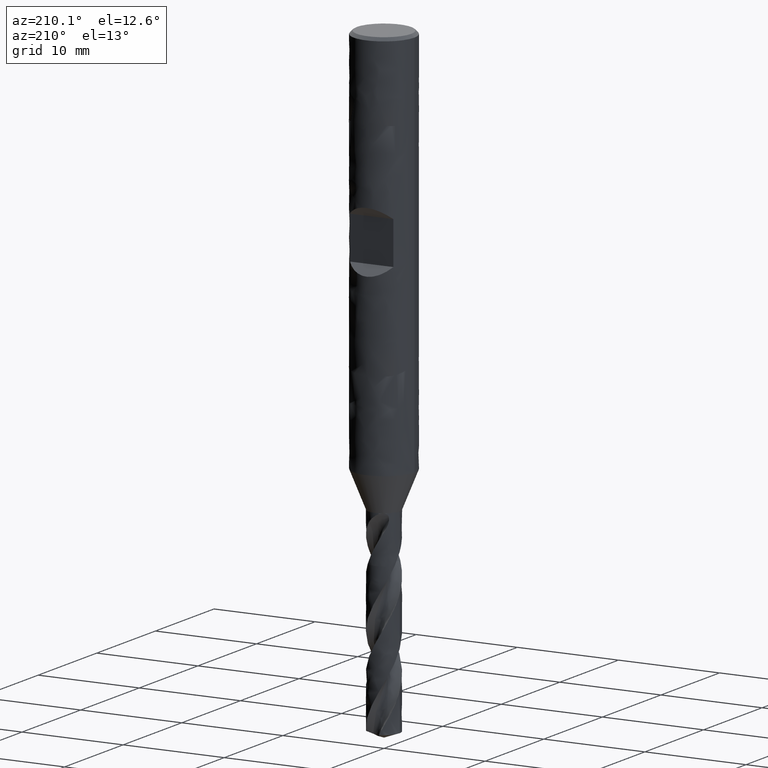
[diagram: clean part render]
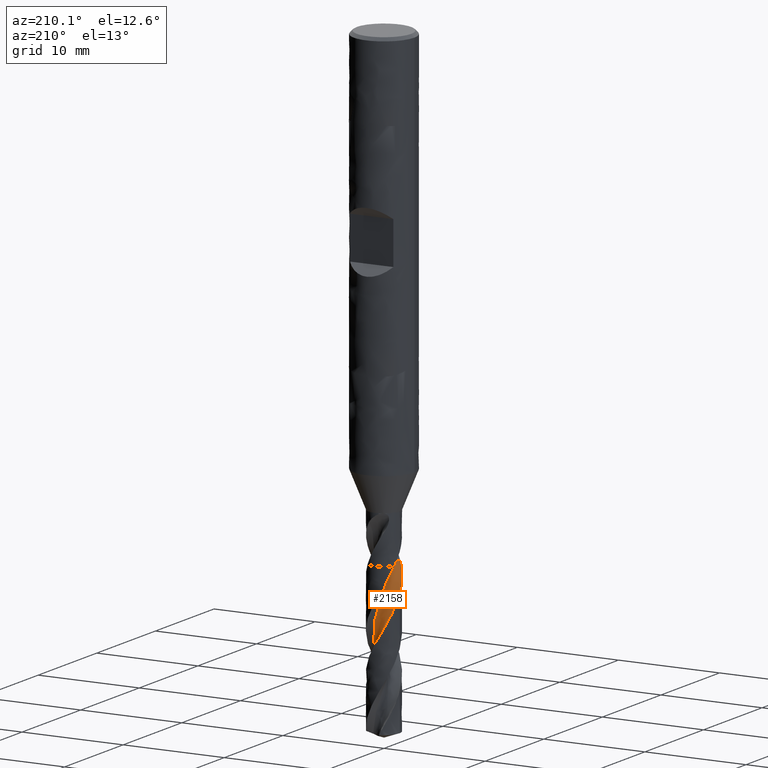
[diagram: same view with one face highlighted and labeled with its STEP entity id]
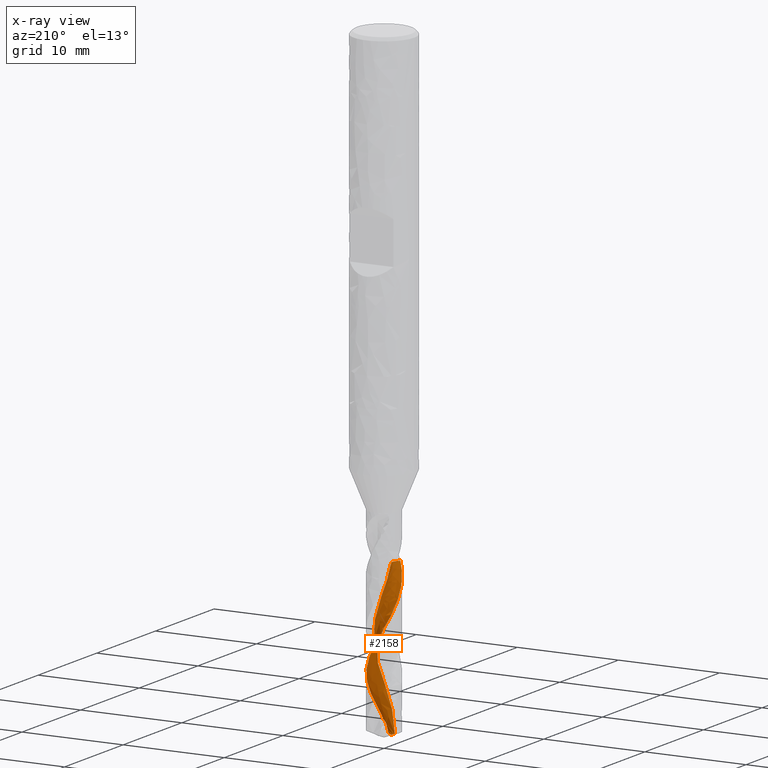
[diagram: x-ray of the same camera — body ghosted, the highlighted face saturated]
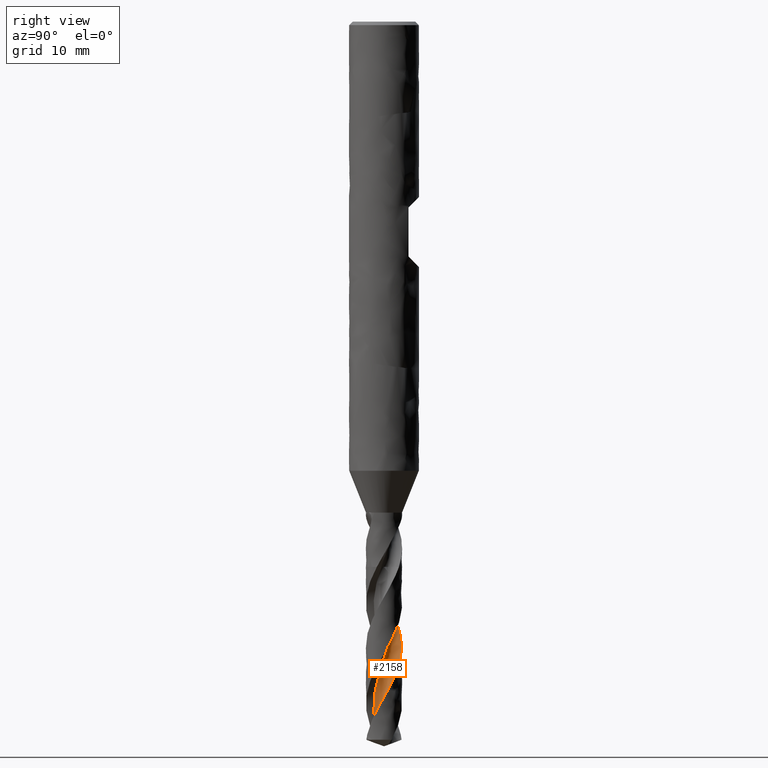
[diagram: same view with one face highlighted and labeled with its STEP entity id]
A machine part, auxiliary view. The second image highlights one B-rep face of the part: STEP entity #2158.
The next image is the same camera in x-ray: the body ghosted, the highlighted face saturated — about 0% of this face is hidden behind the body in this view.
A second angle (right view) of the same face is appended — the face is thin or edge-on in the first view.
In plain terms, the highlighted face is a freeform B-spline surface patch.
Its self-contained STEP definition (entity closure, byte-faithful):
#1658 = VERTEX_POINT('', #1659);
#1659 = CARTESIAN_POINT('', (-0.884158068900923, -1.27309249828808, -46.65));
#1693 = VERTEX_POINT('', #1694);
#1694 = CARTESIAN_POINT('', (-0.895284943980389, 0.244365567497763, -46.65));
#1700 = EDGE_CURVE('', #1693, #1658, #1701, .T.);
#1701 = CIRCLE('', #1702, 0.930090319672978);
#1702 = AXIS2_PLACEMENT_3D('', #1703, #1704, #1705);
#1703 = CARTESIAN_POINT('', (-1.42763617465061, -0.518307785676644, -46.65));
#1704 = DIRECTION('', (2.99971177112166E-14, 7.01123163726737E-15, -1.));
#1705 = DIRECTION('', (0.572364934522202, 0.819999013249038, 2.29185013388549E-14));
#2102 = EDGE_CURVE('', #1658, #2103, #2105, .T.);
#2103 = VERTEX_POINT('', #2104);
#2104 = CARTESIAN_POINT('', (-1.19291626860228, -0.989672054826245, -47.3797636748293));
#2105 = B_SPLINE_CURVE_WITH_KNOTS('', 3, (#2106, #2107, #2108, #2109, #2110, #2111, #2112, #2113, #2114, #2115, #2116, #2117, #2118), .UNSPECIFIED., .F., .U., (4, 3, 3, 3, 4), (1.85836392341819, 2.02697741915636, 2.32261171812472, 2.61816168050034, 2.70048715971505), .UNSPECIFIED.);
#2106 = CARTESIAN_POINT('', (-0.884158068900923, -1.27309249828808, -46.65));
#2107 = CARTESIAN_POINT('', (-0.907207475976353, -1.2570847696458, -46.6986972598587));
#2108 = CARTESIAN_POINT('', (-0.929826184788996, -1.24044771661915, -46.747410955595));
#2109 = CARTESIAN_POINT('', (-0.951969028413255, -1.22321501337333, -46.7961107921002));
#2110 = CARTESIAN_POINT('', (-0.990792635167656, -1.19300047970801, -46.8814974449423));
#2111 = CARTESIAN_POINT('', (-1.02818592983138, -1.1609278477726, -46.9669089945676));
#2112 = CARTESIAN_POINT('', (-1.06395782697545, -1.12716180844529, -47.0522980859814));
#2113 = CARTESIAN_POINT('', (-1.09971951934988, -1.09340540166982, -47.1376628181613));
#2114 = CARTESIAN_POINT('', (-1.13388012549378, -1.05793828831981, -47.2230538235406));
#2115 = CARTESIAN_POINT('', (-1.16626619230614, -1.02094229449257, -47.3084234332222));
#2116 = CARTESIAN_POINT('', (-1.17528733529251, -1.01063705575604, -47.3322031487428));
#2117 = CARTESIAN_POINT('', (-1.18417185008953, -1.00021227272212, -47.3559835825667));
#2118 = CARTESIAN_POINT('', (-1.19291626860229, -0.989672054826238, -47.3797636748293));
#2158 = ADVANCED_FACE('', (#2159), #2384, .T.);
#2159 = FACE_OUTER_BOUND('', #2160, .T.);
#2160 = EDGE_LOOP('', (#2161, #2162, #2223, #2316, #2328, #2383));
#2161 = ORIENTED_EDGE('', *, *, #1700, .F.);
#2162 = ORIENTED_EDGE('', *, *, #2163, .F.);
#2163 = EDGE_CURVE('', #2164, #1693, #2166, .T.);
#2164 = VERTEX_POINT('', #2165);
#2165 = CARTESIAN_POINT('', (-0.820372088573614, -0.433109151067706, -61.6623513636984));
#2166 = B_SPLINE_CURVE_WITH_KNOTS('', 3, (#2167, #2168, #2169, #2170, #2171, #2172, #2173, #2174, #2175, #2176, #2177, #2178, #2179, #2180, #2181, #2182, #2183, #2184, #2185, #2186, #2187, #2188, #2189, #2190, #2191, #2192, #2193, #2194, #2195, #2196, #2197, #2198, #2199, #2200, #2201, #2202, #2203, #2204, #2205, #2206, #2207, #2208, #2209, #2210, #2211, #2212, #2213, #2214, #2215, #2216, #2217, #2218, #2219, #2220, #2221, #2222), .UNSPECIFIED., .F., .U., (4, 1, 1, 1, 1, 1, 1, 1, 1, 1, 1, 1, 1, 1, 1, 1, 1, 1, 1, 1, 1, 1, 1, 1, 1, 1, 1, 1, 1, 1, 1, 1, 1, 1, 1, 1, 1, 1, 1, 1, 1, 1, 1, 1, 1, 1, 1, 1, 1, 1, 1, 1, 1, 4), (0.387648636301547, 0.573428571428571, 0.860142857142857, 1.14685714285714, 1.43357142857143, 1.72028571428571, 2.007, 2.29371428571429, 2.58042857142857, 2.86714285714286, 3.15385714285714, 3.44057142857143, 3.72728571428571, 4.014, 4.30071428571429, 4.58742857142857, 4.87414285714286, 5.16085714285714, 5.44757142857143, 5.73428571428571, 6.021, 6.30771428571429, 6.59442857142857, 6.88114285714286, 7.16785714285714, 7.45457142857143, 7.74128571428571, 8.028, 8.31471428571428, 8.60142857142857, 8.88814285714286, 9.17485714285714, 9.46157142857143, 9.74828571428571, 10.035, 10.3217142857143, 10.6084285714286, 10.8951428571429, 11.1818571428571, 11.4685714285714, 11.7552857142857, 12.042, 12.3287142857143, 12.6154285714286, 12.9021428571429, 13.1888571428571, 13.4755714285714, 13.7622857142857, 14.049, 14.3357142857143, 14.6224285714286, 14.9091428571429, 15.1958571428571, 15.4), .UNSPECIFIED.);
#2167 = CARTESIAN_POINT('', (-0.820372088573614, -0.433109151067706, -61.6623513636984));
#2168 = CARTESIAN_POINT('', (-0.810011782758436, -0.451573680569038, -61.6004247186561));
#2169 = CARTESIAN_POINT('', (-0.782094350491548, -0.497600412978577, -61.4429266450423));
#2170 = CARTESIAN_POINT('', (-0.731094299094061, -0.567313057749458, -61.1898571428571));
#2171 = CARTESIAN_POINT('', (-0.665544796063354, -0.639637253232335, -60.9031428571429));
#2172 = CARTESIAN_POINT('', (-0.592974397431088, -0.70455431017064, -60.6164285714286));
#2173 = CARTESIAN_POINT('', (-0.514203894214459, -0.761397422520778, -60.3297142857143));
#2174 = CARTESIAN_POINT('', (-0.43011538971722, -0.80958867147406, -60.043));
#2175 = CARTESIAN_POINT('', (-0.341643388642359, -0.848644952949179, -59.7562857142857));
#2176 = CARTESIAN_POINT('', (-0.249764635939904, -0.878182425777729, -59.4695714285714));
#2177 = CARTESIAN_POINT('', (-0.155487787190808, -0.897920052709875, -59.1828571428571));
#2178 = CARTESIAN_POINT('', (-0.0598427534486084, -0.907682042023052, -58.8961428571429));
#2179 = CARTESIAN_POINT('', (0.0361301019557038, -0.90739921555357, -58.6094285714286));
#2180 = CARTESIAN_POINT('', (0.13139082544888, -0.897109283906459, -58.3227142857143));
#2181 = CARTESIAN_POINT('', (0.224910681171876, -0.876956035038409, -58.036));
#2182 = CARTESIAN_POINT('', (0.315682799505723, -0.84718744884376, -57.7492857142857));
#2183 = CARTESIAN_POINT('', (0.402732561245687, -0.808152761671318, -57.4625714285714));
#2184 = CARTESIAN_POINT('', (0.485127616059945, -0.760298514352121, -57.1758571428571));
#2185 = CARTESIAN_POINT('', (0.561987437760393, -0.704163626959768, -56.8891428571429));
#2186 = CARTESIAN_POINT('', (0.632492323834714, -0.640373552613814, -56.6024285714286));
#2187 = CARTESIAN_POINT('', (0.695891752393228, -0.569633571219592, -56.3157142857143));
#2188 = CARTESIAN_POINT('', (0.751512016168747, -0.4927212920103, -56.029));
#2189 = CARTESIAN_POINT('', (0.798763060396724, -0.410478441062172, -55.7422857142857));
#2190 = CARTESIAN_POINT('', (0.837144459233867, -0.323802016528699, -55.4555714285714));
#2191 = CARTESIAN_POINT('', (0.866250473773143, -0.233634900132395, -55.1688571428571));
#2192 = CARTESIAN_POINT('', (0.88577414360664, -0.140956018415466, -54.8821428571429));
#2193 = CARTESIAN_POINT('', (0.895510373195797, -0.0467701513441261, -54.5954285714286));
#2194 = CARTESIAN_POINT('', (0.895357983948703, 0.0479025109473123, -54.3087142857143));
#2195 = CARTESIAN_POINT('', (0.885320712792298, 0.142036960222365, -54.022));
#2196 = CARTESIAN_POINT('', (0.86550714807699, 0.234614006648883, -53.7352857142857));
#2197 = CARTESIAN_POINT('', (0.836129603775138, 0.324630855012337, -53.4485714285714));
#2198 = CARTESIAN_POINT('', (0.797501943045456, 0.411111516494903, -53.1618571428571));
#2199 = CARTESIAN_POINT('', (0.750036372244908, 0.493116953423967, -52.8751428571429));
#2200 = CARTESIAN_POINT('', (0.694239236291465, 0.569754856876888, -52.5884285714286));
#2201 = CARTESIAN_POINT('', (0.630705855829812, 0.640188960430223, -52.3017142857143));
#2202 = CARTESIAN_POINT('', (0.560114455844495, 0.703647797632914, -52.015));
#2203 = CARTESIAN_POINT('', (0.483219244120418, 0.759432815928971, -51.7282857142857));
#2204 = CARTESIAN_POINT('', (0.400842706191697, 0.806925765713489, -51.4415714285714));
#2205 = CARTESIAN_POINT('', (0.313867191073377, 0.845595289927411, -51.1548571428571));
#2206 = CARTESIAN_POINT('', (0.223225869066552, 0.875002647025631, -50.8681428571429));
#2207 = CARTESIAN_POINT('', (0.129893149203786, 0.894806508228383, -50.5814285714286));
#2208 = CARTESIAN_POINT('', (0.0348746493939352, 0.904766778619284, -50.2947142857143));
#2209 = CARTESIAN_POINT('', (-0.0608031829991585, 0.904747400815052, -50.008));
#2210 = CARTESIAN_POINT('', (-0.156103698671346, 0.894718109514256, -49.7212857142857));
#2211 = CARTESIAN_POINT('', (-0.249990817476171, 0.874755115191866, -49.4345714285714));
#2212 = CARTESIAN_POINT('', (-0.341439837320137, 0.845040705315557, -49.1478571428571));
#2213 = CARTESIAN_POINT('', (-0.429448171742929, 0.805861762160765, -48.8611428571429));
#2214 = CARTESIAN_POINT('', (-0.513045916026307, 0.757607205523324, -48.5744285714286));
#2215 = CARTESIAN_POINT('', (-0.591306109495509, 0.700764383669883, -48.2877142857143));
#2216 = CARTESIAN_POINT('', (-0.663354687752807, 0.635914429047601, -48.001));
#2217 = CARTESIAN_POINT('', (-0.72837965876616, 0.563726669455616, -47.7142857142857));
#2218 = CARTESIAN_POINT('', (-0.785640768178872, 0.484951956237347, -47.4275714285714));
#2219 = CARTESIAN_POINT('', (-0.834474477344996, 0.400415672462618, -47.1408571428571));
#2220 = CARTESIAN_POINT('', (-0.870488737307082, 0.319590776284642, -46.8816666666667));
#2221 = CARTESIAN_POINT('', (-0.888580634443863, 0.266653735050546, -46.7180476190476));
#2222 = CARTESIAN_POINT('', (-0.895284943980389, 0.244365567497762, -46.65));
#2223 = ORIENTED_EDGE('', *, *, #2224, .T.);
#2224 = EDGE_CURVE('', #2164, #2225, #2227, .T.);
#2225 = VERTEX_POINT('', #2226);
#2226 = CARTESIAN_POINT('', (0.349973993716162, -1.50997291489694, -61.4358461368874));
#2227 = B_SPLINE_CURVE_WITH_KNOTS('', 3, (#2228, #2229, #2230, #2231, #2232, #2233, #2234, #2235, #2236, #2237, #2238, #2239, #2240, #2241, #2242, #2243, #2244, #2245, #2246, #2247, #2248, #2249, #2250, #2251, #2252, #2253, #2254, #2255, #2256, #2257, #2258, #2259, #2260, #2261, #2262, #2263, #2264, #2265, #2266, #2267, #2268, #2269, #2270, #2271, #2272, #2273, #2274, #2275, #2276, #2277, #2278, #2279, #2280, #2281, #2282, #2283, #2284, #2285, #2286, #2287, #2288, #2289, #2290, #2291, #2292, #2293, #2294, #2295, #2296, #2297, #2298, #2299, #2300, #2301, #2302, #2303, #2304, #2305, #2306, #2307, #2308, #2309, #2310, #2311, #2312, #2313, #2314, #2315), .UNSPECIFIED., .F., .U., (4, 3, 3, 3, 3, 3, 3, 3, 3, 3, 3, 3, 3, 3, 3, 3, 3, 3, 3, 3, 3, 3, 3, 3, 3, 3, 3, 3, 3, 4), (0., 0.0877554509108771, 0.17531319917069, 0.233555974355757, 0.29169291379722, 0.349721431444751, 0.40765987257716, 0.465552574786508, 0.523463798979454, 0.581457576554027, 0.639572838032563, 0.697810855663514, 0.756142381871795, 0.814525422643039, 0.872920496888131, 0.898872035299704, 0.916192479740151, 0.942211385251336, 0.959551025968964, 1.04830598978806, 1.13663361673215, 1.22463604895147, 1.31238878422237, 1.39994512007703, 1.4873418556988, 1.57460397778113, 1.66174804870489, 1.74878452707419, 1.83571933667465, 1.84920120702102), .UNSPECIFIED.);
#2228 = CARTESIAN_POINT('', (-0.820372088573615, -0.433109151067704, -61.6623513636985));
#2229 = CARTESIAN_POINT('', (-0.793699927394839, -0.426125006143608, -61.6721230745925));
#2230 = CARTESIAN_POINT('', (-0.766502605424877, -0.420750540973126, -61.6817703801935));
#2231 = CARTESIAN_POINT('', (-0.739030367017324, -0.417100883933472, -61.6911311983434));
#2232 = CARTESIAN_POINT('', (-0.711620020313448, -0.413459449139441, -61.7004709276772));
#2233 = CARTESIAN_POINT('', (-0.683836614389277, -0.411523168755243, -61.7095598917659));
#2234 = CARTESIAN_POINT('', (-0.655955425508031, -0.411366816655653, -61.7181873223454));
#2235 = CARTESIAN_POINT('', (-0.637409062128697, -0.411262812379993, -61.7239262262077));
#2236 = CARTESIAN_POINT('', (-0.618779845997671, -0.411944616535479, -61.7294723855877));
#2237 = CARTESIAN_POINT('', (-0.600155118501013, -0.413420120229665, -61.7347502491282));
#2238 = CARTESIAN_POINT('', (-0.581564234891049, -0.414892942715235, -61.7400185220094));
#2239 = CARTESIAN_POINT('', (-0.562943445611981, -0.41715962437609, -61.7450289860794));
#2240 = CARTESIAN_POINT('', (-0.544384554839206, -0.420212554105409, -61.749697181874));
#2241 = CARTESIAN_POINT('', (-0.525860275249102, -0.423259790309731, -61.7543566717724));
#2242 = CARTESIAN_POINT('', (-0.507361574850425, -0.427096626594511, -61.758683724317));
#2243 = CARTESIAN_POINT('', (-0.488984042968694, -0.431695631679959, -61.7625902449031));
#2244 = CARTESIAN_POINT('', (-0.470635038164606, -0.436287497821179, -61.766490701475));
#2245 = CARTESIAN_POINT('', (-0.452369540802034, -0.441648765982463, -61.7699790166366));
#2246 = CARTESIAN_POINT('', (-0.434284871193426, -0.447728421982924, -61.7729735585868));
#2247 = CARTESIAN_POINT('', (-0.416214478346422, -0.453803278459743, -61.7759657365258));
#2248 = CARTESIAN_POINT('', (-0.398287108442289, -0.460608016364282, -61.7784701634279));
#2249 = CARTESIAN_POINT('', (-0.380597249590218, -0.46806729905552, -61.7804256948656));
#2250 = CARTESIAN_POINT('', (-0.362901731108124, -0.475528968242921, -61.782381851949));
#2251 = CARTESIAN_POINT('', (-0.345407554667083, -0.483660529338145, -61.7837921095611));
#2252 = CARTESIAN_POINT('', (-0.328199256266829, -0.49236732411786, -61.7846291416866));
#2253 = CARTESIAN_POINT('', (-0.310966427160399, -0.501086530573589, -61.7854673670148));
#2254 = CARTESIAN_POINT('', (-0.293986846648725, -0.51039877576932, -61.7857324119162));
#2255 = CARTESIAN_POINT('', (-0.277327767851957, -0.520201079593602, -61.7854365820505));
#2256 = CARTESIAN_POINT('', (-0.260633792036692, -0.53002391703694, -61.7851401324879));
#2257 = CARTESIAN_POINT('', (-0.244232593736275, -0.540355088700408, -61.7842807352488));
#2258 = CARTESIAN_POINT('', (-0.22817033617573, -0.551096409976277, -61.7829049643343));
#2259 = CARTESIAN_POINT('', (-0.212074150505992, -0.561860420013036, -61.7815262873957));
#2260 = CARTESIAN_POINT('', (-0.19629452356536, -0.573051516810266, -61.7796281377096));
#2261 = CARTESIAN_POINT('', (-0.180858097823795, -0.584586054543286, -61.7772780196493));
#2262 = CARTESIAN_POINT('', (-0.165396886928668, -0.596139112450197, -61.7749241281741));
#2263 = CARTESIAN_POINT('', (-0.150261424022484, -0.608050152098461, -61.7721149759571));
#2264 = CARTESIAN_POINT('', (-0.135464192863315, -0.620253719551041, -61.768924696052));
#2265 = CARTESIAN_POINT('', (-0.120653893763946, -0.632468064390821, -61.7657315987017));
#2266 = CARTESIAN_POINT('', (-0.106168400160939, -0.644986853530488, -61.7621543044872));
#2267 = CARTESIAN_POINT('', (-0.0920121451978697, -0.657761515745918, -61.7582633533607));
#2268 = CARTESIAN_POINT('', (-0.0778529724538547, -0.670538810978774, -61.7543716002607));
#2269 = CARTESIAN_POINT('', (-0.064012627545234, -0.683581598383992, -61.7501634544654));
#2270 = CARTESIAN_POINT('', (-0.0504922970413411, -0.69685458164127, -61.7457007459861));
#2271 = CARTESIAN_POINT('', (-0.0444836844837773, -0.702753269831848, -61.7437174596897));
#2272 = CARTESIAN_POINT('', (-0.0385370697538112, -0.708698708921797, -61.7416833933325));
#2273 = CARTESIAN_POINT('', (-0.0326525202712865, -0.71468843418078, -61.7396033355258));
#2274 = CARTESIAN_POINT('', (-0.0287250840340699, -0.718686066302485, -61.7382150738704));
#2275 = CARTESIAN_POINT('', (-0.0248250595268381, -0.722703670184654, -61.7368062354444));
#2276 = CARTESIAN_POINT('', (-0.0209524724655171, -0.726740590059751, -61.7353781472902));
#2277 = CARTESIAN_POINT('', (-0.0151350422500978, -0.732804882298181, -61.733232862227));
#2278 = CARTESIAN_POINT('', (-0.00937903949458812, -0.738913262388902, -61.7310439737631));
#2279 = CARTESIAN_POINT('', (-0.0036845882627459, -0.745063729276338, -61.7288156638876));
#2280 = CARTESIAN_POINT('', (0.000110334563725526, -0.749162552189084, -61.7273306631971));
#2281 = CARTESIAN_POINT('', (0.00387812181392714, -0.753280288783058, -61.7258280685892));
#2282 = CARTESIAN_POINT('', (0.0076187222592366, -0.757416402935507, -61.7243090282322));
#2283 = CARTESIAN_POINT('', (0.0267654198518575, -0.778587583349815, -61.7165336438332));
#2284 = CARTESIAN_POINT('', (0.0452118973812375, -0.800251703457381, -61.7083258123014));
#2285 = CARTESIAN_POINT('', (0.0629452052878389, -0.822350158600561, -61.6998134928544));
#2286 = CARTESIAN_POINT('', (0.0805931309683861, -0.844342214232582, -61.6913421584729));
#2287 = CARTESIAN_POINT('', (0.0975507912600012, -0.866785079842493, -61.6825607900071));
#2288 = CARTESIAN_POINT('', (0.113794280871358, -0.889633098040288, -61.6735618785379));
#2289 = CARTESIAN_POINT('', (0.129977967029185, -0.912396996973859, -61.664596098249));
#2290 = CARTESIAN_POINT('', (0.145466164599411, -0.93558245149628, -61.655406292539));
#2291 = CARTESIAN_POINT('', (0.160224786431197, -0.959148202510205, -61.6460612152638));
#2292 = CARTESIAN_POINT('', (0.174941532342722, -0.982647088370894, -61.6367426535886));
#2293 = CARTESIAN_POINT('', (0.188944747251803, -1.00654351402494, -61.6272616816384));
#2294 = CARTESIAN_POINT('', (0.202191470873862, -1.0307957463957, -61.6176716150625));
#2295 = CARTESIAN_POINT('', (0.215408547000851, -1.05499369983981, -61.6081030120168));
#2296 = CARTESIAN_POINT('', (0.227883408851619, -1.07956614540576, -61.5984175633191));
#2297 = CARTESIAN_POINT('', (0.239565391487561, -1.10446771273977, -61.5886588009754));
#2298 = CARTESIAN_POINT('', (0.25122607986614, -1.12932388877333, -61.5789178271872));
#2299 = CARTESIAN_POINT('', (0.262106851465853, -1.1545297951836, -61.5690951175483));
#2300 = CARTESIAN_POINT('', (0.272150301961949, -1.18003396498494, -61.5592282976101));
#2301 = CARTESIAN_POINT('', (0.282178282950978, -1.2054988517794, -61.5493766751223));
#2302 = CARTESIAN_POINT('', (0.291380779016053, -1.23128498763668, -61.5394717424641));
#2303 = CARTESIAN_POINT('', (0.299694536223232, -1.25733254572931, -61.5295479585929));
#2304 = CARTESIAN_POINT('', (0.307997046297669, -1.28334486580186, -61.519637599953));
#2305 = CARTESIAN_POINT('', (0.315421520612394, -1.3096444415316, -61.5096982802601));
#2306 = CARTESIAN_POINT('', (0.321899858077794, -1.33616076315373, -61.4997633163055));
#2307 = CARTESIAN_POINT('', (0.328370197054379, -1.36264434636064, -61.4898406185687));
#2308 = CARTESIAN_POINT('', (0.333903791026515, -1.38937386161272, -61.4799111081122));
#2309 = CARTESIAN_POINT('', (0.338429027399919, -1.41626561896252, -61.4700085317439));
#2310 = CARTESIAN_POINT('', (0.342948977768886, -1.44312596359993, -61.460117522741));
#2311 = CARTESIAN_POINT('', (0.346468301926541, -1.47018162615237, -61.4502410625244));
#2312 = CARTESIAN_POINT('', (0.348913808832971, -1.4973330577194, -61.4404145990555));
#2313 = CARTESIAN_POINT('', (0.349293058608696, -1.50154370799617, -61.4388907088318));
#2314 = CARTESIAN_POINT('', (0.349646544439711, -1.50575713056087, -61.4373678421685));
#2315 = CARTESIAN_POINT('', (0.349973993716168, -1.50997291489693, -61.4358461368874));
#2316 = ORIENTED_EDGE('', *, *, #2317, .F.);
#2317 = EDGE_CURVE('', #2318, #2225, #2320, .T.);
#2318 = VERTEX_POINT('', #2319);
#2319 = CARTESIAN_POINT('', (0.598909748504045, -1.42961782065936, -60.9732158103966));
#2320 = B_SPLINE_CURVE_WITH_KNOTS('', 3, (#2321, #2322, #2323, #2324, #2325, #2326, #2327), .UNSPECIFIED., .F., .U., (4, 3, 4), (0., 0.4424696598773, 0.531526986611299), .UNSPECIFIED.);
#2321 = CARTESIAN_POINT('', (0.598909748504046, -1.42961782065936, -60.9732158103966));
#2322 = CARTESIAN_POINT('', (0.531883535008349, -1.45769711016442, -61.1015602955224));
#2323 = CARTESIAN_POINT('', (0.46284703800062, -1.48106413517583, -61.2299871942302));
#2324 = CARTESIAN_POINT('', (0.392563482824736, -1.49946454174565, -61.3583418340637));
#2325 = CARTESIAN_POINT('', (0.378417280034105, -1.50316805221998, -61.3841761954539));
#2326 = CARTESIAN_POINT('', (0.36421867644714, -1.5066713533554, -61.410011393286));
#2327 = CARTESIAN_POINT('', (0.349973993716162, -1.50997291489694, -61.4358461368874));
#2328 = ORIENTED_EDGE('', *, *, #2329, .T.);
#2329 = EDGE_CURVE('', #2318, #2103, #2330, .T.);
#2330 = B_SPLINE_CURVE_WITH_KNOTS('', 3, (#2331, #2332, #2333, #2334, #2335, #2336, #2337, #2338, #2339, #2340, #2341, #2342, #2343, #2344, #2345, #2346, #2347, #2348, #2349, #2350, #2351, #2352, #2353, #2354, #2355, #2356, #2357, #2358, #2359, #2360, #2361, #2362, #2363, #2364, #2365, #2366, #2367, #2368, #2369, #2370, #2371, #2372, #2373, #2374, #2375, #2376, #2377, #2378, #2379, #2380, #2381, #2382), .UNSPECIFIED., .F., .U., (4, 1, 1, 1, 1, 1, 1, 1, 1, 1, 1, 1, 1, 1, 1, 1, 1, 1, 1, 1, 1, 1, 1, 1, 1, 1, 1, 1, 1, 1, 1, 1, 1, 1, 1, 1, 1, 1, 1, 1, 1, 1, 1, 1, 1, 1, 1, 1, 1, 4), (1.07678418960344, 1.14685714285714, 1.43357142857143, 1.72028571428571, 2.007, 2.29371428571429, 2.58042857142857, 2.86714285714286, 3.15385714285714, 3.44057142857143, 3.72728571428571, 4.014, 4.30071428571429, 4.58742857142857, 4.87414285714286, 5.16085714285714, 5.44757142857143, 5.73428571428571, 6.021, 6.30771428571429, 6.59442857142857, 6.88114285714286, 7.16785714285714, 7.45457142857143, 7.74128571428571, 8.028, 8.31471428571428, 8.60142857142857, 8.88814285714286, 9.17485714285714, 9.46157142857143, 9.74828571428571, 10.035, 10.3217142857143, 10.6084285714286, 10.8951428571429, 11.1818571428571, 11.4685714285714, 11.7552857142857, 12.042, 12.3287142857143, 12.6154285714286, 12.9021428571429, 13.1888571428571, 13.4755714285714, 13.7622857142857, 14.049, 14.3357142857143, 14.6224285714286, 14.6702363251707), .UNSPECIFIED.);
#2331 = CARTESIAN_POINT('', (0.598909748504054, -1.42961782065935, -60.9732158103966));
#2332 = CARTESIAN_POINT('', (0.611092187966905, -1.42417660364138, -60.949858159312));
#2333 = CARTESIAN_POINT('', (0.672747623535301, -1.39568665747616, -60.830929079656));
#2334 = CARTESIAN_POINT('', (0.780337622071052, -1.33717840956205, -60.6164285714286));
#2335 = CARTESIAN_POINT('', (0.91487003347748, -1.2445915369115, -60.3297142857143));
#2336 = CARTESIAN_POINT('', (1.03870987956337, -1.13869340663763, -60.043));
#2337 = CARTESIAN_POINT('', (1.15056395070565, -1.02069055884016, -59.7562857142857));
#2338 = CARTESIAN_POINT('', (1.24927232594987, -0.891912529261149, -59.4695714285714));
#2339 = CARTESIAN_POINT('', (1.3338198191232, -0.753797495695095, -59.1828571428571));
#2340 = CARTESIAN_POINT('', (1.40334586825368, -0.607876787448554, -58.8961428571429));
#2341 = CARTESIAN_POINT('', (1.45715280883157, -0.455758553498583, -58.6094285714286));
#2342 = CARTESIAN_POINT('', (1.4947124500174, -0.299110719699964, -58.3227142857143));
#2343 = CARTESIAN_POINT('', (1.51567089977104, -0.139643417332971, -58.036));
#2344 = CARTESIAN_POINT('', (1.51985159934247, 0.0209089430599006, -57.7492857142857));
#2345 = CARTESIAN_POINT('', (1.50725654569689, 0.180805772894965, -57.4625714285714));
#2346 = CARTESIAN_POINT('', (1.47806569774088, 0.338318402348824, -57.1758571428571));
#2347 = CARTESIAN_POINT('', (1.43263457968193, 0.491747993973878, -56.8891428571429));
#2348 = CARTESIAN_POINT('', (1.3714901120268, 0.639443097015898, -56.6024285714286));
#2349 = CARTESIAN_POINT('', (1.29532471753863, 0.779816670501687, -56.3157142857143));
#2350 = CARTESIAN_POINT('', (1.20498876576153, 0.911362408925441, -56.029));
#2351 = CARTESIAN_POINT('', (1.10148143535214, 1.03267021161562, -55.7422857142857));
#2352 = CARTESIAN_POINT('', (0.985940088295141, 1.14244064554611, -55.4555714285714));
#2353 = CARTESIAN_POINT('', (0.859628263999604, 1.23949826138061, -55.1688571428571));
#2354 = CARTESIAN_POINT('', (0.72392241415902, 1.32280363381513, -54.8821428571429));
#2355 = CARTESIAN_POINT('', (0.580297511000661, 1.39146400970733, -54.5954285714286));
#2356 = CARTESIAN_POINT('', (0.430311672053015, 1.44474246094113, -54.3087142857143));
#2357 = CARTESIAN_POINT('', (0.275589953734629, 1.48206545335122, -54.022));
#2358 = CARTESIAN_POINT('', (0.117807473837715, 1.50302875819885, -53.7352857142857));
#2359 = CARTESIAN_POINT('', (-0.0413279707199735, 1.50740164851353, -53.4485714285714));
#2360 = CARTESIAN_POINT('', (-0.200093619724483, 1.4951293389595, -53.1618571428571));
#2361 = CARTESIAN_POINT('', (-0.356769624712869, 1.46633364460702, -52.8751428571429));
#2362 = CARTESIAN_POINT('', (-0.509656907254243, 1.42131185094416, -52.5884285714286));
#2363 = CARTESIAN_POINT('', (-0.657094824468235, 1.36053380450613, -52.3017142857143));
#2364 = CARTESIAN_POINT('', (-0.797478467382413, 1.28463725048019, -52.015));
#2365 = CARTESIAN_POINT('', (-0.929275420928631, 1.19442146041593, -51.7282857142857));
#2366 = CARTESIAN_POINT('', (-1.05104181915352, 1.09083920958766, -51.4415714285714));
#2367 = CARTESIAN_POINT('', (-1.16143753553432, 0.974987179473693, -51.1548571428571));
#2368 = CARTESIAN_POINT('', (-1.25924035609922, 0.848094876093927, -50.8681428571429));
#2369 = CARTESIAN_POINT('', (-1.34335899228946, 0.711512169450379, -50.5814285714286));
#2370 = CARTESIAN_POINT('', (-1.41284480109683, 0.566695572902824, -50.2947142857143));
#2371 = CARTESIAN_POINT('', (-1.46690209187338, 0.415193393893924, -50.008));
#2372 = CARTESIAN_POINT('', (-1.50489691226901, 0.258629898774149, -49.7212857142857));
#2373 = CARTESIAN_POINT('', (-1.52636421980466, 0.0986886449160985, -49.4345714285714));
#2374 = CARTESIAN_POINT('', (-1.5310133608739, -0.0629048589569774, -49.1478571428571));
#2375 = CARTESIAN_POINT('', (-1.51873179402897, -0.224400991987548, -48.8611428571429));
#2376 = CARTESIAN_POINT('', (-1.4895870140713, -0.38404419667147, -48.5744285714286));
#2377 = CARTESIAN_POINT('', (-1.4438266390909, -0.540091267888346, -48.2877142857143));
#2378 = CARTESIAN_POINT('', (-1.38187668307465, -0.690829736222394, -48.001));
#2379 = CARTESIAN_POINT('', (-1.30433789421754, -0.834595556336741, -47.7142857142857));
#2380 = CARTESIAN_POINT('', (-1.23763307724735, -0.932241028033821, -47.5072069392288));
#2381 = CARTESIAN_POINT('', (-1.1985633702457, -0.982532536258797, -47.3956995927433));
#2382 = CARTESIAN_POINT('', (-1.19291626860228, -0.989672054826245, -47.3797636748293));
#2383 = ORIENTED_EDGE('', *, *, #2102, .F.);
#2384 = (
   BOUNDED_SURFACE ()
   B_SPLINE_SURFACE (3, 2, ((#2385, #2386, #2387, #2388, #2389), (#2390, #2391, #2392, #2393, #2394), (#2395, #2396, #2397, #2398, #2399), (#2400, #2401, #2402, #2403, #2404), (#2405, #2406, #2407, #2408, #2409), (#2410, #2411, #2412, #2413, #2414), (#2415, #2416, #2417, #2418, #2419), (#2420, #2421, #2422, #2423, #2424), (#2425, #2426, #2427, #2428, #2429), (#2430, #2431, #2432, #2433, #2434), (#2435, #2436, #2437, #2438, #2439), (#2440, #2441, #2442, #2443, #2444), (#2445, #2446, #2447, #2448, #2449), (#2450, #2451, #2452, #2453, #2454), (#2455, #2456, #2457, #2458, #2459), (#2460, #2461, #2462, #2463, #2464), (#2465, #2466, #2467, #2468, #2469), (#2470, #2471, #2472, #2473, #2474), (#2475, #2476, #2477, #2478, #2479), (#2480, #2481, #2482, #2483, #2484), (#2485, #2486, #2487, #2488, #2489), (#2490, #2491, #2492, #2493, #2494), (#2495, #2496, #2497, #2498, #2499), (#2500, #2501, #2502, #2503, #2504), (#2505, #2506, #2507, #2508, #2509), (#2510, #2511, #2512, #2513, #2514), (#2515, #2516, #2517, #2518, #2519), (#2520, #2521, #2522, #2523, #2524), (#2525, #2526, #2527, #2528, #2529), (#2530, #2531, #2532, #2533, #2534), (#2535, #2536, #2537, #2538, #2539), (#2540, #2541, #2542, #2543, #2544), (#2545, #2546, #2547, #2548, #2549), (#2550, #2551, #2552, #2553, #2554), (#2555, #2556, #2557, #2558, #2559), (#2560, #2561, #2562, #2563, #2564), (#2565, #2566, #2567, #2568, #2569), (#2570, #2571, #2572, #2573, #2574), (#2575, #2576, #2577, #2578, #2579), (#2580, #2581, #2582, #2583, #2584), (#2585, #2586, #2587, #2588, #2589), (#2590, #2591, #2592, #2593, #2594), (#2595, #2596, #2597, #2598, #2599), (#2600, #2601, #2602, #2603, #2604), (#2605, #2606, #2607, #2608, #2609), (#2610, #2611, #2612, #2613, #2614), (#2615, #2616, #2617, #2618, #2619), (#2620, #2621, #2622, #2623, #2624), (#2625, #2626, #2627, #2628, #2629), (#2630, #2631, #2632, #2633, #2634), (#2635, #2636, #2637, #2638, #2639), (#2640, #2641, #2642, #2643, #2644), (#2645, #2646, #2647, #2648, #2649), (#2650, #2651, #2652, #2653, #2654), (#2655, #2656, #2657, #2658, #2659), (#2660, #2661, #2662, #2663, #2664)), .UNSPECIFIED., .F., .F., .U.)
   B_SPLINE_SURFACE_WITH_KNOTS ((4, 1, 1, 1, 1, 1, 1, 1, 1, 1, 1, 1, 1, 1, 1, 1, 1, 1, 1, 1, 1, 1, 1, 1, 1, 1, 1, 1, 1, 1, 1, 1, 1, 1, 1, 1, 1, 1, 1, 1, 1, 1, 1, 1, 1, 1, 1, 1, 1, 1, 1, 1, 1, 4), (3, 2, 3), (0.264267588083845, 0.573428571428571, 0.860142857142857, 1.14685714285714, 1.43357142857143, 1.72028571428571, 2.007, 2.29371428571429, 2.58042857142857, 2.86714285714286, 3.15385714285714, 3.44057142857143, 3.72728571428571, 4.014, 4.30071428571429, 4.58742857142857, 4.87414285714286, 5.16085714285714, 5.44757142857143, 5.73428571428571, 6.021, 6.30771428571429, 6.59442857142857, 6.88114285714286, 7.16785714285714, 7.45457142857143, 7.74128571428571, 8.028, 8.31471428571428, 8.60142857142857, 8.88814285714286, 9.17485714285714, 9.46157142857143, 9.74828571428571, 10.035, 10.3217142857143, 10.6084285714286, 10.8951428571429, 11.1818571428571, 11.4685714285714, 11.7552857142857, 12.042, 12.3287142857143, 12.6154285714286, 12.9021428571429, 13.1888571428571, 13.4755714285714, 13.7622857142857, 14.049, 14.3357142857143, 14.6224285714286, 14.9091428571429, 15.1958571428571, 15.4), (0., 0.5, 1.), .UNSPECIFIED.)
   GEOMETRIC_REPRESENTATION_ITEM ()
   RATIONAL_B_SPLINE_SURFACE (((1., 0.887010833178222, 1., 0.887010833178222, 1.), (1., 0.887010833178222, 1., 0.887010833178222, 1.), (1., 0.887010833178221, 1., 0.887010833178221, 1.), (1., 0.887010833178222, 1., 0.887010833178222, 1.), (1., 0.887010833178222, 1., 0.887010833178222, 1.), (1., 0.887010833178222, 1., 0.887010833178222, 1.), (1., 0.887010833178222, 1., 0.887010833178222, 1.), (0.999999999999999, 0.887010833178221, 0.999999999999999, 0.887010833178221, 0.999999999999999), (1., 0.887010833178222, 1., 0.887010833178222, 1.), (1., 0.887010833178222, 1., 0.887010833178222, 1.), (1., 0.887010833178222, 1., 0.887010833178222, 1.), (1., 0.887010833178222, 1., 0.887010833178222, 1.), (1., 0.887010833178222, 1., 0.887010833178222, 1.), (1., 0.887010833178222, 1., 0.887010833178222, 1.), (1., 0.887010833178222, 1., 0.887010833178222, 1.), (1., 0.887010833178222, 1., 0.887010833178222, 1.), (1., 0.887010833178222, 1., 0.887010833178222, 1.), (1., 0.887010833178222, 1., 0.887010833178222, 1.), (1., 0.887010833178222, 1., 0.887010833178222, 1.), (1., 0.887010833178221, 1., 0.887010833178221, 1.), (1., 0.887010833178222, 1., 0.887010833178222, 1.), (1., 0.887010833178222, 1., 0.887010833178222, 1.), (1., 0.887010833178222, 1., 0.887010833178222, 1.), (1., 0.887010833178222, 1., 0.887010833178222, 1.), (1., 0.887010833178222, 1., 0.887010833178222, 1.), (1., 0.887010833178221, 1., 0.887010833178221, 1.), (1., 0.887010833178222, 1., 0.887010833178222, 1.), (1., 0.887010833178222, 1., 0.887010833178222, 1.), (1., 0.887010833178222, 1., 0.887010833178222, 1.), (1., 0.887010833178222, 1., 0.887010833178222, 1.), (1., 0.887010833178222, 1., 0.887010833178222, 1.), (1., 0.887010833178222, 1., 0.887010833178222, 1.), (1., 0.887010833178222, 1., 0.887010833178222, 1.), (1., 0.887010833178222, 1., 0.887010833178222, 1.), (1., 0.887010833178222, 1., 0.887010833178222, 1.), (1., 0.887010833178222, 1., 0.887010833178222, 1.), (1., 0.887010833178222, 1., 0.887010833178222, 1.), (1., 0.887010833178222, 1., 0.887010833178222, 1.), (1., 0.887010833178221, 1., 0.887010833178221, 1.), (1., 0.887010833178222, 1., 0.887010833178222, 1.), (1., 0.887010833178222, 1., 0.887010833178222, 1.), (1., 0.887010833178222, 1., 0.887010833178222, 1.), (1., 0.887010833178221, 1., 0.887010833178221, 1.), (1., 0.887010833178222, 1., 0.887010833178222, 1.), (1., 0.887010833178222, 1., 0.887010833178222, 1.), (1., 0.887010833178222, 1., 0.887010833178222, 1.), (1., 0.887010833178221, 1., 0.887010833178221, 1.), (1., 0.887010833178222, 1., 0.887010833178222, 1.), (1., 0.887010833178222, 1., 0.887010833178222, 1.), (1., 0.887010833178222, 1., 0.887010833178222, 1.), (1., 0.887010833178222, 1., 0.887010833178222, 1.), (1., 0.887010833178222, 1., 0.887010833178222, 1.), (1., 0.887010833178222, 1., 0.887010833178222, 1.), (1., 0.887010833178222, 1., 0.887010833178222, 1.), (1., 0.887010833178222, 1., 0.887010833178222, 1.), (1., 0.887010833178222, 1., 0.887010833178222, 1.)))
   REPRESENTATION_ITEM ('')
   SURFACE ()
);
#2385 = CARTESIAN_POINT('', (0.151792113734814, -1.55409069686115, -61.7857324119162));
#2386 = CARTESIAN_POINT('', (0.272472607173426, -1.08480118539676, -61.7857324119162));
#2387 = CARTESIAN_POINT('', (-0.0427273681424096, -0.716772106888043, -61.7857324119162));
#2388 = CARTESIAN_POINT('', (-0.357927343458245, -0.34874302837933, -61.7857324119162));
#2389 = CARTESIAN_POINT('', (-0.840190394056046, -0.395846925194549, -61.7857324119162));
#2390 = CARTESIAN_POINT('', (0.210647283066373, -1.54679245469497, -61.6826787508012));
#2391 = CARTESIAN_POINT('', (0.313390774820623, -1.07338453637807, -61.6826787508013));
#2392 = CARTESIAN_POINT('', (-0.0154710433925929, -0.717686368341618, -61.6826787508012));
#2393 = CARTESIAN_POINT('', (-0.344332861605809, -0.361988200305162, -61.6826787508013));
#2394 = CARTESIAN_POINT('', (-0.824331132845384, -0.427355943344166, -61.6826787508012));
#2395 = CARTESIAN_POINT('', (0.323122236894909, -1.52634559911783, -61.4840536611149));
#2396 = CARTESIAN_POINT('', (0.390897454189641, -1.04696251707634, -61.4840536611149));
#2397 = CARTESIAN_POINT('', (0.0370840901466329, -0.716481469432899, -61.4840536611149));
#2398 = CARTESIAN_POINT('', (-0.316729273896375, -0.386000421789454, -61.4840536611149));
#2399 = CARTESIAN_POINT('', (-0.790382508153435, -0.486271220653162, -61.4840536611149));
#2400 = CARTESIAN_POINT('', (0.484956026115144, -1.47828582800311, -61.1898571428571));
#2401 = CARTESIAN_POINT('', (0.500439034745106, -0.995740909959626, -61.1898571428571));
#2402 = CARTESIAN_POINT('', (0.11404206758249, -0.70628157731796, -61.1898571428571));
#2403 = CARTESIAN_POINT('', (-0.272354899580127, -0.416822244676293, -61.1898571428571));
#2404 = CARTESIAN_POINT('', (-0.731094299094061, -0.567313057749458, -61.1898571428571));
#2405 = CARTESIAN_POINT('', (0.636526356377115, -1.41538405414403, -60.9031428571429));
#2406 = CARTESIAN_POINT('', (0.601134763346804, -0.935094601089528, -60.9031428571429));
#2407 = CARTESIAN_POINT('', (0.187404892219656, -0.688602983970958, -60.9031428571429));
#2408 = CARTESIAN_POINT('', (-0.226324978907491, -0.442111366852387, -60.9031428571429));
#2409 = CARTESIAN_POINT('', (-0.665544796063354, -0.639637253232335, -60.9031428571429));
#2410 = CARTESIAN_POINT('', (0.780337622071053, -1.33717840956205, -60.6164285714286));
#2411 = CARTESIAN_POINT('', (0.694709722581771, -0.8644306007074, -60.6164285714286));
#2412 = CARTESIAN_POINT('', (0.258343243084054, -0.663415866126601, -60.6164285714286));
#2413 = CARTESIAN_POINT('', (-0.178023236413664, -0.462401131545801, -60.6164285714286));
#2414 = CARTESIAN_POINT('', (-0.592974397431088, -0.70455431017064, -60.6164285714286));
#2415 = CARTESIAN_POINT('', (0.91487003347748, -1.2445915369115, -60.3297142857143));
#2416 = CARTESIAN_POINT('', (0.780185224292397, -0.784563808336643, -60.3297142857143));
#2417 = CARTESIAN_POINT('', (0.326100537117681, -0.631030079936643, -60.3297142857143));
#2418 = CARTESIAN_POINT('', (-0.127984150057035, -0.477496351536643, -60.3297142857143));
#2419 = CARTESIAN_POINT('', (-0.514203894214459, -0.761397422520778, -60.3297142857143));
#2420 = CARTESIAN_POINT('', (1.03870987956337, -1.13869340663763, -60.043));
#2421 = CARTESIAN_POINT('', (0.856673362700424, -0.696402231242396, -60.043));
#2422 = CARTESIAN_POINT('', (0.389957785576432, -0.591830019953211, -60.043));
#2423 = CARTESIAN_POINT('', (-0.0767577915475613, -0.487257808664025, -60.043));
#2424 = CARTESIAN_POINT('', (-0.43011538971722, -0.80958867147406, -60.043));
#2425 = CARTESIAN_POINT('', (1.15056395070565, -1.02069055884015, -59.7562857142857));
#2426 = CARTESIAN_POINT('', (0.92338608959027, -0.600937832652263, -59.7562857142857));
#2427 = CARTESIAN_POINT('', (0.44924091784117, -0.546270769166637, -59.7562857142857));
#2428 = CARTESIAN_POINT('', (-0.0249042539079289, -0.491603705681011, -59.7562857142857));
#2429 = CARTESIAN_POINT('', (-0.341643388642359, -0.848644952949179, -59.7562857142857));
#2430 = CARTESIAN_POINT('', (1.24927232594987, -0.891912529261149, -59.4695714285714));
#2431 = CARTESIAN_POINT('', (0.979642832072146, -0.4992355588023, -59.4695714285714));
#2432 = CARTESIAN_POINT('', (0.503327564742051, -0.494872852559934, -59.4695714285714));
#2433 = CARTESIAN_POINT('', (0.0270122974119554, -0.490510146317567, -59.4695714285714));
#2434 = CARTESIAN_POINT('', (-0.249764635939904, -0.878182425777729, -59.4695714285714));
#2435 = CARTESIAN_POINT('', (1.3338198191232, -0.753797495695095, -59.1828571428572));
#2436 = CARTESIAN_POINT('', (1.02487707754226, -0.392421956075866, -59.1828571428572));
#2437 = CARTESIAN_POINT('', (0.551653288754614, -0.438216540210904, -59.1828571428572));
#2438 = CARTESIAN_POINT('', (0.0784294999669691, -0.484011124345941, -59.1828571428572));
#2439 = CARTESIAN_POINT('', (-0.155487787190809, -0.897920052709875, -59.1828571428572));
#2440 = CARTESIAN_POINT('', (1.40334586825368, -0.607876787448554, -58.8961428571429));
#2441 = CARTESIAN_POINT('', (1.058641735217, -0.281673147951298, -58.8961428571429));
#2442 = CARTESIAN_POINT('', (0.593717188845657, -0.376935522135584, -58.8961428571429));
#2443 = CARTESIAN_POINT('', (0.128792642474313, -0.47219789631987, -58.8961428571429));
#2444 = CARTESIAN_POINT('', (-0.0598427534486086, -0.907682042023052, -58.8961428571429));
#2445 = CARTESIAN_POINT('', (1.45715280883157, -0.455758553498584, -58.6094285714286));
#2446 = CARTESIAN_POINT('', (1.08061326349557, -0.16820238750633, -58.6094285714286));
#2447 = CARTESIAN_POINT('', (0.629086831716038, -0.311710084883361, -58.6094285714286));
#2448 = CARTESIAN_POINT('', (0.177560399936509, -0.455217782260393, -58.6094285714286));
#2449 = CARTESIAN_POINT('', (0.0361301019557037, -0.907399215553571, -58.6094285714286));
#2450 = CARTESIAN_POINT('', (1.4947124500174, -0.299110719699964, -58.3227142857143));
#2451 = CARTESIAN_POINT('', (1.09059451967994, -0.0532472864045422, -58.3227142857143));
#2452 = CARTESIAN_POINT('', (0.657402463331562, -0.243259843275687, -58.3227142857143));
#2453 = CARTESIAN_POINT('', (0.224210406983186, -0.433272400146832, -58.3227142857143));
#2454 = CARTESIAN_POINT('', (0.13139082544888, -0.897109283906459, -58.3227142857143));
#2455 = CARTESIAN_POINT('', (1.51567089977104, -0.139643417332971, -58.036));
#2456 = CARTESIAN_POINT('', (1.08851631312807, 0.0619431447673807, -58.036));
#2457 = CARTESIAN_POINT('', (0.678380463104702, -0.172336106202845, -58.036));
#2458 = CARTESIAN_POINT('', (0.268244613081334, -0.406615357173069, -58.036));
#2459 = CARTESIAN_POINT('', (0.224910681171876, -0.876956035038409, -58.036));
#2460 = CARTESIAN_POINT('', (1.51985159934247, 0.0209089430599006, -57.7492857142857));
#2461 = CARTESIAN_POINT('', (1.07443765227872, 0.176121517388579, -57.7492857142857));
#2462 = CARTESIAN_POINT('', (0.691816010260145, -0.099713952643205, -57.7492857142857));
#2463 = CARTESIAN_POINT('', (0.309194368241571, -0.375549422674989, -57.7492857142857));
#2464 = CARTESIAN_POINT('', (0.315682799505723, -0.84718744884376, -57.7492857142857));
#2465 = CARTESIAN_POINT('', (1.50725654569689, 0.180805772894965, -57.4625714285714));
#2466 = CARTESIAN_POINT('', (1.04854468943638, 0.288055017379282, -57.4625714285714));
#2467 = CARTESIAN_POINT('', (0.697584939742716, -0.0261840979634628, -57.4625714285714));
#2468 = CARTESIAN_POINT('', (0.346625190049057, -0.340423213306208, -57.4625714285714));
#2469 = CARTESIAN_POINT('', (0.402732561245687, -0.808152761671318, -57.4625714285714));
#2470 = CARTESIAN_POINT('', (1.47806569774088, 0.338318402348824, -57.1758571428571));
#2471 = CARTESIAN_POINT('', (1.01114837943718, 0.396538161882689, -57.1758571428571));
#2472 = CARTESIAN_POINT('', (0.695644772893782, 0.0474553682789291, -57.1758571428571));
#2473 = CARTESIAN_POINT('', (0.38014116635038, -0.301627425324831, -57.1758571428571));
#2474 = CARTESIAN_POINT('', (0.485127616059945, -0.760298514352121, -57.1758571428571));
#2475 = CARTESIAN_POINT('', (1.43263457968193, 0.491747993973878, -56.8891428571429));
#2476 = CARTESIAN_POINT('', (0.962680880613765, 0.500405234831096, -56.8891428571429));
#2477 = CARTESIAN_POINT('', (0.686034916106166, 0.120407290877755, -56.8891428571429));
#2478 = CARTESIAN_POINT('', (0.409388951598567, -0.259590653075586, -56.8891428571429));
#2479 = CARTESIAN_POINT('', (0.561987437760393, -0.704163626959768, -56.8891428571429));
#2480 = CARTESIAN_POINT('', (1.3714901120268, 0.639443097015899, -56.6024285714286));
#2481 = CARTESIAN_POINT('', (0.903690738360611, 0.598542279876934, -56.6024285714286));
#2482 = CARTESIAN_POINT('', (0.668876028658379, 0.191883721682752, -56.6024285714286));
#2483 = CARTESIAN_POINT('', (0.434061318956147, -0.214774836511431, -56.6024285714286));
#2484 = CARTESIAN_POINT('', (0.632492323834714, -0.640373552613814, -56.6024285714286));
#2485 = CARTESIAN_POINT('', (1.29532471753863, 0.779816670501687, -56.3157142857143));
#2486 = CARTESIAN_POINT('', (0.834836903069227, 0.689898533915107, -56.3157142857143));
#2487 = CARTESIAN_POINT('', (0.644368568866338, 0.261114074975664, -56.3157142857143));
#2488 = CARTESIAN_POINT('', (0.453900234663448, -0.167670383963779, -56.3157142857143));
#2489 = CARTESIAN_POINT('', (0.695891752393228, -0.569633571219592, -56.3157142857143));
#2490 = CARTESIAN_POINT('', (1.20498876576153, 0.911362408925441, -56.029));
#2491 = CARTESIAN_POINT('', (0.75688164512998, 0.773497190232606, -56.029));
#2492 = CARTESIAN_POINT('', (0.61279053550319, 0.327353085472224, -56.029));
#2493 = CARTESIAN_POINT('', (0.4686994258764, -0.118791019288158, -56.029));
#2494 = CARTESIAN_POINT('', (0.751512016168747, -0.4927212920103, -56.029));
#2495 = CARTESIAN_POINT('', (1.10148143535214, 1.03267021161562, -55.7422857142857));
#2496 = CARTESIAN_POINT('', (0.67068244000027, 0.848445387118491, -55.7422857142857));
#2497 = CARTESIAN_POINT('', (0.574494429058332, 0.389888491075902, -55.7422857142857));
#2498 = CARTESIAN_POINT('', (0.478306418116394, -0.0686684049666864, -55.7422857142857));
#2499 = CARTESIAN_POINT('', (0.798763060396724, -0.410478441062172, -55.7422857142857));
#2500 = CARTESIAN_POINT('', (0.985940088295141, 1.14244064554611, -55.4555714285714));
#2501 = CARTESIAN_POINT('', (0.57718290592815, 0.913943325492344, -55.4555714285714));
#2502 = CARTESIAN_POINT('', (0.529903464769793, 0.448048365386413, -55.4555714285714));
#2503 = CARTESIAN_POINT('', (0.482624023611435, -0.0178465947195175, -55.4555714285714));
#2504 = CARTESIAN_POINT('', (0.837144459233868, -0.3238020165287, -55.4555714285714));
#2505 = CARTESIAN_POINT('', (0.859628263999604, 1.23949826138061, -55.1688571428571));
#2506 = CARTESIAN_POINT('', (0.477402885717361, 0.969292427688529, -55.1688571428571));
#2507 = CARTESIAN_POINT('', (0.479507076406977, 0.501208028519132, -55.1688571428571));
#2508 = CARTESIAN_POINT('', (0.481611267096593, 0.0331236293497352, -55.1688571428571));
#2509 = CARTESIAN_POINT('', (0.866250473773143, -0.233634900132396, -55.1688571428571));
#2510 = CARTESIAN_POINT('', (0.72392241415902, 1.32280363381513, -54.8821428571429));
#2511 = CARTESIAN_POINT('', (0.372427771851148, 1.01390245888907, -54.8821428571429));
#2512 = CARTESIAN_POINT('', (0.423855756443665, 0.548796468987206, -54.8821428571429));
#2513 = CARTESIAN_POINT('', (0.475283741036183, 0.0836904790853454, -54.8821428571429));
#2514 = CARTESIAN_POINT('', (0.88577414360664, -0.140956018415466, -54.8821428571429));
#2515 = CARTESIAN_POINT('', (0.58029751100066, 1.39146400970733, -54.5954285714286));
#2516 = CARTESIAN_POINT('', (0.263397181292376, 1.04729754274521, -54.5954285714286));
#2517 = CARTESIAN_POINT('', (0.363555284487567, 0.590302214197155, -54.5954285714286));
#2518 = CARTESIAN_POINT('', (0.463713387682757, 0.133306885649097, -54.5954285714286));
#2519 = CARTESIAN_POINT('', (0.895510373195797, -0.0467701513441261, -54.5954285714286));
#2520 = CARTESIAN_POINT('', (0.430311672053015, 1.44474246094113, -54.3087142857143));
#2521 = CARTESIAN_POINT('', (0.151493092289125, 1.06912101337742, -54.3087142857143));
#2522 = CARTESIAN_POINT('', (0.299260401570293, 0.625278592467469, -54.3087142857143));
#2523 = CARTESIAN_POINT('', (0.447027710851462, 0.181436171557513, -54.3087142857143));
#2524 = CARTESIAN_POINT('', (0.895357983948703, 0.0479025109473121, -54.3087142857143));
#2525 = CARTESIAN_POINT('', (0.275589953734629, 1.48206545335122, -54.022));
#2526 = CARTESIAN_POINT('', (0.0379275604884124, 1.07913905710123, -54.022));
#2527 = CARTESIAN_POINT('', (0.231667993101768, 0.65334833535013, -54.022));
#2528 = CARTESIAN_POINT('', (0.425408425715124, 0.227557613599034, -54.022));
#2529 = CARTESIAN_POINT('', (0.885320712792299, 0.142036960222365, -54.022));
#2530 = CARTESIAN_POINT('', (0.117807473837715, 1.50302875819885, -53.7352857142857));
#2531 = CARTESIAN_POINT('', (-0.0760698644447405, 1.07724310879506, -53.7352857142857));
#2532 = CARTESIAN_POINT('', (0.161509847912007, 0.674207475365244, -53.7352857142857));
#2533 = CARTESIAN_POINT('', (0.399089560268755, 0.271171841935425, -53.7352857142857));
#2534 = CARTESIAN_POINT('', (0.86550714807699, 0.234614006648883, -53.7352857142857));
#2535 = CARTESIAN_POINT('', (-0.0413279707199735, 1.50740164851353, -53.4485714285714));
#2536 = CARTESIAN_POINT('', (-0.189264897722168, 1.06345097970428, -53.4485714285714));
#2537 = CARTESIAN_POINT('', (0.0895450648017497, 0.687628500993329, -53.4485714285714));
#2538 = CARTESIAN_POINT('', (0.368355027325667, 0.311806022282377, -53.4485714285714));
#2539 = CARTESIAN_POINT('', (0.836129603775138, 0.324630855012337, -53.4485714285714));
#2540 = CARTESIAN_POINT('', (-0.200093619724483, 1.4951293389595, -53.1618571428571));
#2541 = CARTESIAN_POINT('', (-0.30043132821122, 1.03790670556024, -53.1618571428571));
#2542 = CARTESIAN_POINT('', (0.0165521813675254, 0.693462737849873, -53.1618571428571));
#2543 = CARTESIAN_POINT('', (0.33353569094627, 0.349018770139503, -53.1618571428571));
#2544 = CARTESIAN_POINT('', (0.797501943045456, 0.411111516494902, -53.1618571428571));
#2545 = CARTESIAN_POINT('', (-0.356769624712869, 1.46633364460702, -52.8751428571429));
#2546 = CARTESIAN_POINT('', (-0.408363750965893, 1.00087911608019, -52.8751428571429));
#2547 = CARTESIAN_POINT('', (-0.0566788974724266, 0.691641932330847, -52.8751428571429));
#2548 = CARTESIAN_POINT('', (0.29500595602104, 0.382404748581502, -52.8751428571429));
#2549 = CARTESIAN_POINT('', (0.750036372244908, 0.493116953423967, -52.8751428571429));
#2550 = CARTESIAN_POINT('', (-0.509656907254243, 1.42131185094416, -52.5884285714286));
#2551 = CARTESIAN_POINT('', (-0.511890098030592, 0.952759139096404, -52.5884285714286));
#2552 = CARTESIAN_POINT('', (-0.129355091870543, 0.682179021602417, -52.5884285714286));
#2553 = CARTESIAN_POINT('', (0.253179914289504, 0.411598904108431, -52.5884285714286));
#2554 = CARTESIAN_POINT('', (0.694239236291465, 0.569754856876888, -52.5884285714286));
#2555 = CARTESIAN_POINT('', (-0.657094824468235, 1.36053380450613, -52.3017142857143));
#2556 = CARTESIAN_POINT('', (-0.60988384383658, 0.894055864636832, -52.3017142857143));
#2557 = CARTESIAN_POINT('', (-0.200688379749587, 0.665168081547532, -52.3017142857143));
#2558 = CARTESIAN_POINT('', (0.208507084337407, 0.436280298458232, -52.3017142857143));
#2559 = CARTESIAN_POINT('', (0.630705855829812, 0.640188960430223, -52.3017142857143));
#2560 = CARTESIAN_POINT('', (-0.797478467382413, 1.28463725048019, -52.015));
#2561 = CARTESIAN_POINT('', (-0.701275764445472, 0.825391406138873, -52.015));
#2562 = CARTESIAN_POINT('', (-0.269903988704149, 0.640783452109475, -52.015));
#2563 = CARTESIAN_POINT('', (0.161467787037175, 0.456175498080077, -52.015));
#2564 = CARTESIAN_POINT('', (0.560114455844495, 0.703647797632915, -52.015));
#2565 = CARTESIAN_POINT('', (-0.929275420928631, 1.19442146041593, -51.7282857142857));
#2566 = CARTESIAN_POINT('', (-0.785065133939921, 0.74749460751965, -51.7282857142857));
#2567 = CARTESIAN_POINT('', (-0.336248466246145, 0.609278047320119, -51.7282857142857));
#2568 = CARTESIAN_POINT('', (0.112568201447632, 0.471061487120587, -51.7282857142857));
#2569 = CARTESIAN_POINT('', (0.483219244120418, 0.759432815928971, -51.7282857142857));
#2570 = CARTESIAN_POINT('', (-1.05104181915352, 1.09083920958766, -51.4415714285714));
#2571 = CARTESIAN_POINT('', (-0.860330246386875, 0.661193655949004, -51.4415714285714));
#2572 = CARTESIAN_POINT('', (-0.398997548525696, 0.570980865100235, -51.4415714285714));
#2573 = CARTESIAN_POINT('', (0.0623351493354839, 0.480768074251466, -51.4415714285714));
#2574 = CARTESIAN_POINT('', (0.400842706191697, 0.806925765713489, -51.4415714285714));
#2575 = CARTESIAN_POINT('', (-1.16143753553432, 0.974987179473693, -51.1548571428571));
#2576 = CARTESIAN_POINT('', (-0.926238157962388, 0.567407670777227, -51.1548571428571));
#2577 = CARTESIAN_POINT('', (-0.457463749383683, 0.526293719602943, -51.1548571428571));
#2578 = CARTESIAN_POINT('', (0.0113106591950216, 0.485179768428659, -51.1548571428571));
#2579 = CARTESIAN_POINT('', (0.313867191073377, 0.845595289927411, -51.1548571428571));
#2580 = CARTESIAN_POINT('', (-1.25924035609922, 0.848094876093927, -50.8681428571429));
#2581 = CARTESIAN_POINT('', (-0.982053550979597, 0.46713734906303, -50.8681428571429));
#2582 = CARTESIAN_POINT('', (-0.511003594040915, 0.475687226371215, -50.8681428571429));
#2583 = CARTESIAN_POINT('', (-0.0399536371022318, 0.4842371036794, -50.8681428571429));
#2584 = CARTESIAN_POINT('', (0.223225869066552, 0.875002647025631, -50.8681428571429));
#2585 = CARTESIAN_POINT('', (-1.34335899228946, 0.711512169450379, -50.5814285714286));
#2586 = CARTESIAN_POINT('', (-1.02714662964487, 0.361454757440446, -50.5814285714286));
#2587 = CARTESIAN_POINT('', (-0.559024424882589, 0.419696077831289, -50.5814285714286));
#2588 = CARTESIAN_POINT('', (-0.0909022201203087, 0.477937398222132, -50.5814285714286));
#2589 = CARTESIAN_POINT('', (0.129893149203786, 0.894806508228383, -50.5814285714286));
#2590 = CARTESIAN_POINT('', (-1.41284480109683, 0.566695572902824, -50.2947142857143));
#2591 = CARTESIAN_POINT('', (-1.06099996631581, 0.251492368564363, -50.2947142857143));
#2592 = CARTESIAN_POINT('', (-0.6009907106333, 0.358913653576869, -50.2947142857143));
#2593 = CARTESIAN_POINT('', (-0.140981454950791, 0.466334938589375, -50.2947142857143));
#2594 = CARTESIAN_POINT('', (0.0348746493939354, 0.904766778619284, -50.2947142857143));
#2595 = CARTESIAN_POINT('', (-1.46690209187338, 0.415193393893924, -50.008));
#2596 = CARTESIAN_POINT('', (-1.08321422677399, 0.138431448028292, -50.008));
#2597 = CARTESIAN_POINT('', (-0.636429794701908, 0.293986016466147, -50.008));
#2598 = CARTESIAN_POINT('', (-0.189645362629828, 0.449540584904002, -50.008));
#2599 = CARTESIAN_POINT('', (-0.0608031829991584, 0.904747400815053, -50.008));
#2600 = CARTESIAN_POINT('', (-1.50489691226901, 0.258629898774149, -49.7212857142857));
#2601 = CARTESIAN_POINT('', (-1.09351271347917, 0.0234899042923891, -49.7212857142857));
#2602 = CARTESIAN_POINT('', (-0.664937023592322, 0.225605351640828, -49.7212857142857));
#2603 = CARTESIAN_POINT('', (-0.236361333705476, 0.427720798989266, -49.7212857142857));
#2604 = CARTESIAN_POINT('', (-0.156103698671346, 0.894718109514256, -49.7212857142857));
#2605 = CARTESIAN_POINT('', (-1.52636421980466, 0.0986886449160985, -49.4345714285714));
#2606 = CARTESIAN_POINT('', (-1.09174467683438, -0.092090279936594, -49.4345714285714));
#2607 = CARTESIAN_POINT('', (-0.686180201908635, 0.154502911327563, -49.4345714285714));
#2608 = CARTESIAN_POINT('', (-0.280615726982885, 0.40109610259172, -49.4345714285714));
#2609 = CARTESIAN_POINT('', (-0.249990817476171, 0.874755115191866, -49.4345714285714));
#2610 = CARTESIAN_POINT('', (-1.5310133608739, -0.0629048589569774, -49.1478571428571));
#2611 = CARTESIAN_POINT('', (-1.07788735613994, -0.207055912574349, -49.1478571428571));
#2612 = CARTESIAN_POINT('', (-0.699903326869571, 0.0814415328938744, -49.1478571428571));
#2613 = CARTESIAN_POINT('', (-0.321919297599199, 0.369938978362097, -49.1478571428571));
#2614 = CARTESIAN_POINT('', (-0.341439837320137, 0.845040705315557, -49.1478571428571));
#2615 = CARTESIAN_POINT('', (-1.51873179402897, -0.224400991987548, -48.8611428571429));
#2616 = CARTESIAN_POINT('', (-1.05204672378618, -0.320155624560508, -48.8611428571429));
#2617 = CARTESIAN_POINT('', (-0.705929561275796, 0.0072078038527257, -48.8611428571429));
#2618 = CARTESIAN_POINT('', (-0.359812398765416, 0.334571232265959, -48.8611428571429));
#2619 = CARTESIAN_POINT('', (-0.429448171742929, 0.805861762160765, -48.8611428571429));
#2620 = CARTESIAN_POINT('', (-1.4895870140713, -0.38404419667147, -48.5744285714286));
#2621 = CARTESIAN_POINT('', (-1.01445691921309, -0.430152949515472, -48.5744285714286));
#2622 = CARTESIAN_POINT('', (-0.7041634134494, -0.0673960551499968, -48.5744285714286));
#2623 = CARTESIAN_POINT('', (-0.393869907685711, 0.295360839215478, -48.5744285714286));
#2624 = CARTESIAN_POINT('', (-0.513045916026307, 0.757607205523324, -48.5744285714286));
#2625 = CARTESIAN_POINT('', (-1.4438266390909, -0.540091267888346, -48.2877142857143));
#2626 = CARTESIAN_POINT('', (-0.965478369459382, -0.535839288854694, -48.2877142857143));
#2627 = CARTESIAN_POINT('', (-0.694592090947137, -0.141560490922374, -48.2877142857143));
#2628 = CARTESIAN_POINT('', (-0.423705812434893, 0.252718307009946, -48.2877142857143));
#2629 = CARTESIAN_POINT('', (-0.591306109495509, 0.700764383669883, -48.2877142857143));
#2630 = CARTESIAN_POINT('', (-1.38187668307465, -0.690829736222394, -48.001));
#2631 = CARTESIAN_POINT('', (-0.90559461436821, -0.636046751123043, -48.001));
#2632 = CARTESIAN_POINT('', (-0.677286036938056, -0.214477091518019, -48.001));
#2633 = CARTESIAN_POINT('', (-0.448977459507902, 0.207092568087005, -48.001));
#2634 = CARTESIAN_POINT('', (-0.663354687752807, 0.635914429047601, -48.001));
#2635 = CARTESIAN_POINT('', (-1.30433789421754, -0.834595556336741, -47.7142857142857));
#2636 = CARTESIAN_POINT('', (-0.835407835302835, -0.729660293734826, -47.7142857142857));
#2637 = CARTESIAN_POINT('', (-0.652398538091011, -0.285346883375519, -47.7142857142857));
#2638 = CARTESIAN_POINT('', (-0.469389240879187, 0.158966526983788, -47.7142857142857));
#2639 = CARTESIAN_POINT('', (-0.72837965876616, 0.563726669455616, -47.7142857142857));
#2640 = CARTESIAN_POINT('', (-1.21198065506517, -0.969792182177166, -47.4275714285714));
#2641 = CARTESIAN_POINT('', (-0.755633217877875, -0.815630694497998, -47.4275714285714));
#2642 = CARTESIAN_POINT('', (-0.620164778901077, -0.353389361694391, -47.4275714285714));
#2643 = CARTESIAN_POINT('', (-0.48469633992428, 0.108851971109215, -47.4275714285714));
#2644 = CARTESIAN_POINT('', (-0.785640768178872, 0.484951956237347, -47.4275714285714));
#2645 = CARTESIAN_POINT('', (-1.10573672618941, -1.09490240149954, -47.1408571428572));
#2646 = CARTESIAN_POINT('', (-0.667091847152486, -0.892982058859942, -47.1408571428571));
#2647 = CARTESIAN_POINT('', (-0.580898942067606, -0.417848458921945, -47.1408571428572));
#2648 = CARTESIAN_POINT('', (-0.494706036982727, 0.0572851410160517, -47.1408571428571));
#2649 = CARTESIAN_POINT('', (-0.834474477344996, 0.400415672462618, -47.1408571428572));
#2650 = CARTESIAN_POINT('', (-0.99812220433435, -1.19761688469442, -46.8816666666667));
#2651 = CARTESIAN_POINT('', (-0.579956529036656, -0.954322904730749, -46.8816666666667));
#2652 = CARTESIAN_POINT('', (-0.539401312245524, -0.47223394294593, -46.8816666666667));
#2653 = CARTESIAN_POINT('', (-0.498846095454392, 0.00985501883888953, -46.8816666666667));
#2654 = CARTESIAN_POINT('', (-0.870488737307082, 0.319590776284641, -46.8816666666667));
#2655 = CARTESIAN_POINT('', (-0.924532084403265, -1.25618866401089, -46.7180476190476));
#2656 = CARTESIAN_POINT('', (-0.521609055188685, -0.988004420414272, -46.7180476190476));
#2657 = CARTESIAN_POINT('', (-0.510185571356285, -0.504125034614385, -46.7180476190476));
#2658 = CARTESIAN_POINT('', (-0.498762087523886, -0.0202456488144987, -46.7180476190476));
#2659 = CARTESIAN_POINT('', (-0.888580634443863, 0.266653735050546, -46.7180476190476));
#2660 = CARTESIAN_POINT('', (-0.893032214389753, -1.27940371603046, -46.65));
#2661 = CARTESIAN_POINT('', (-0.496830739135173, -1.00110662690155, -46.65));
#2662 = CARTESIAN_POINT('', (-0.497546538361253, -0.516932725867007, -46.65));
#2663 = CARTESIAN_POINT('', (-0.498262337587333, -0.0327588248324693, -46.65));
#2664 = CARTESIAN_POINT('', (-0.895284943980389, 0.244365567497761, -46.65));